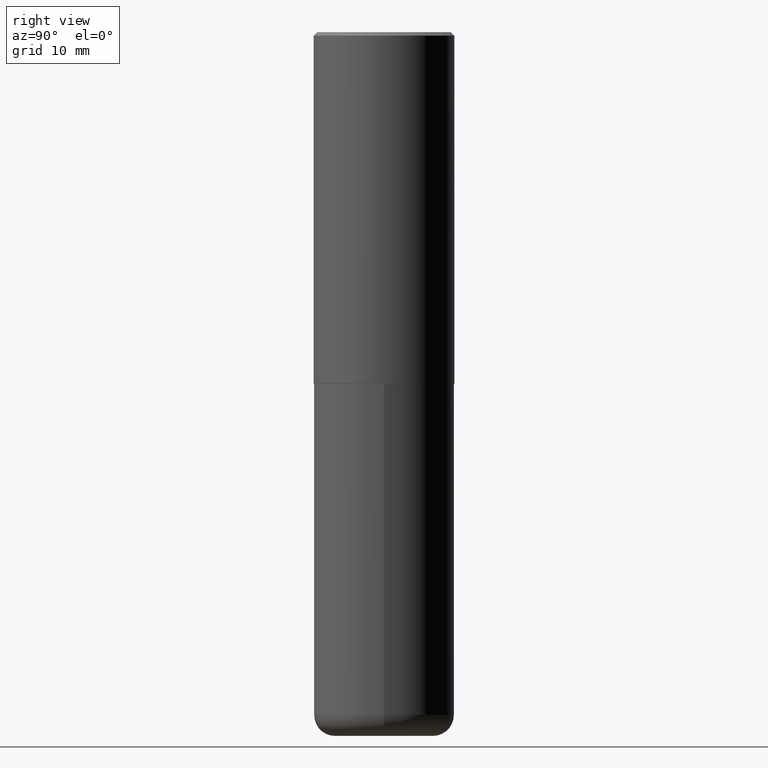
[diagram: clean part render]
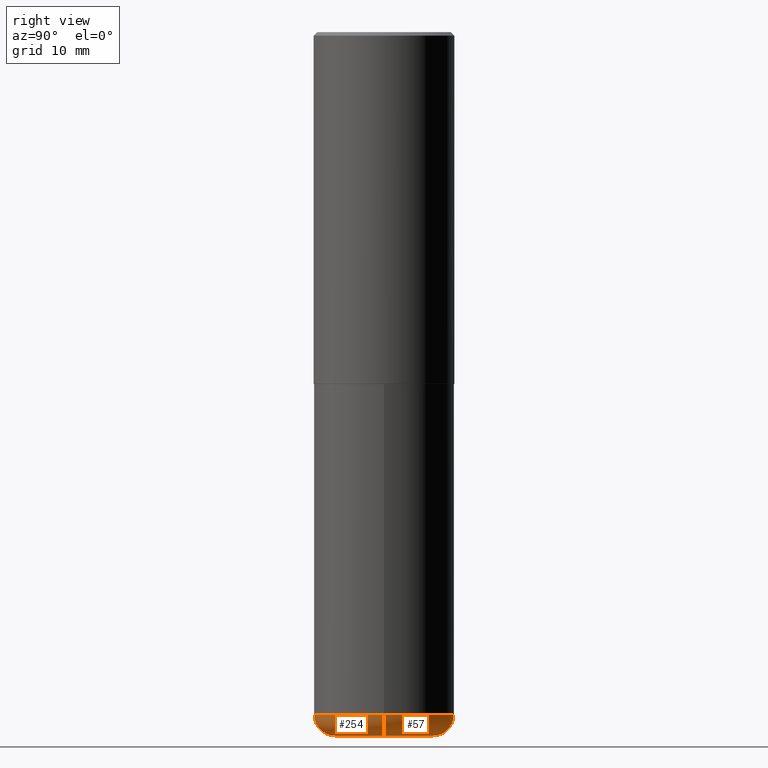
[diagram: same view with one multi-face feature highlighted, each face labeled with its STEP entity id]
A machine part, right view. The highlighted faces form ONE feature: a constant-radius fillet chain: 2 tangent blend faces with common blend radius 2.9997 mm. The faces share edges in the B-rep.
Their STEP definitions:
[1] entity #57 (Torus):
#14 = CIRCLE ( 'NONE', #38, 0.1181000000000000660 ) ;
#18 = FACE_OUTER_BOUND ( 'NONE', #238, .T. ) ;
#22 = AXIS2_PLACEMENT_3D ( 'NONE', #230, #24, #117 ) ;
#24 = DIRECTION ( 'NONE',  ( 7.105427357601001859E-15, 1.000000000000000000, -3.491481338843145583E-15 ) ) ;
#35 = VERTEX_POINT ( 'NONE', #370 ) ;
#38 = AXIS2_PLACEMENT_3D ( 'NONE', #346, #228, #362 ) ;
#39 = EDGE_CURVE ( 'NONE', #159, #35, #14, .T. ) ;
#57 = ADVANCED_FACE ( 'NONE', ( #18 ), #331, .T. ) ;
#81 = EDGE_CURVE ( 'NONE', #159, #267, #154, .T. ) ;
#91 = CARTESIAN_POINT ( 'NONE',  ( -0.3937000000000001054, -1.053621133422057529E-14, -3.818900000000000183 ) ) ;
#99 = DIRECTION ( 'NONE',  ( 1.000000000000000000, -6.982962677686266711E-15, 0.000000000000000000 ) ) ;
#104 = CARTESIAN_POINT ( 'NONE',  ( 0.2756000000000000116, -1.567046654499579837E-14, -3.937000000000000277 ) ) ;
#107 = EDGE_CURVE ( 'NONE', #35, #240, #394, .T. ) ;
#113 = AXIS2_PLACEMENT_3D ( 'NONE', #137, #210, #99 ) ;
#117 = DIRECTION ( 'NONE',  ( -1.000000000000000000, 7.105427357601000281E-15, 0.000000000000000000 ) ) ;
#121 = CARTESIAN_POINT ( 'NONE',  ( -0.2756000000000000116, -1.116195879274560421E-14, -3.937000000000000277 ) ) ;
#132 = CARTESIAN_POINT ( 'NONE',  ( 9.627810689950883669E-29, -1.374596203102546341E-14, -3.937000000000000277 ) ) ;
#137 = CARTESIAN_POINT ( 'NONE',  ( 9.339000823940418668E-29, -1.333361808490808928E-14, -3.818900000000000183 ) ) ;
#139 = ORIENTED_EDGE ( 'NONE', *, *, #107, .F. ) ;
#141 = ORIENTED_EDGE ( 'NONE', *, *, #337, .T. ) ;
#154 = CIRCLE ( 'NONE', #350, 0.2756000000000000116 ) ;
#159 = VERTEX_POINT ( 'NONE', #104 ) ;
#161 = CIRCLE ( 'NONE', #22, 0.1181000000000000660 ) ;
#210 = DIRECTION ( 'NONE',  ( -2.445468806185136597E-29, 3.491481338843145583E-15, 1.000000000000000000 ) ) ;
#228 = DIRECTION ( 'NONE',  ( -6.982962677686266711E-15, -1.000000000000000000, 3.491481338843145583E-15 ) ) ;
#230 = CARTESIAN_POINT ( 'NONE',  ( -0.2756000000000000116, -1.137536230515325427E-14, -3.818900000000000183 ) ) ;
#238 = EDGE_LOOP ( 'NONE', ( #390, #141, #139, #296 ) ) ;
#240 = VERTEX_POINT ( 'NONE', #91 ) ;
#247 = AXIS2_PLACEMENT_3D ( 'NONE', #389, #262, #326 ) ;
#262 = DIRECTION ( 'NONE',  ( -2.445468806185136597E-29, 3.491481338843145583E-15, 1.000000000000000000 ) ) ;
#267 = VERTEX_POINT ( 'NONE', #121 ) ;
#296 = ORIENTED_EDGE ( 'NONE', *, *, #39, .F. ) ;
#326 = DIRECTION ( 'NONE',  ( 1.000000000000000000, -6.982962677686266711E-15, 4.883557194083112340E-29 ) ) ;
#330 = DIRECTION ( 'NONE',  ( 1.000000000000000000, -6.982962677686265922E-15, 0.000000000000000000 ) ) ;
#331 = TOROIDAL_SURFACE ( 'NONE', #247, 0.2756000000000000116, 0.1181000000000000522 ) ;
#337 = EDGE_CURVE ( 'NONE', #267, #240, #161, .T. ) ;
#340 = DIRECTION ( 'NONE',  ( -2.445468806185136597E-29, 3.491481338843145583E-15, 1.000000000000000000 ) ) ;
#346 = CARTESIAN_POINT ( 'NONE',  ( 0.2756000000000000116, -1.525812259887842581E-14, -3.818900000000000183 ) ) ;
#350 = AXIS2_PLACEMENT_3D ( 'NONE', #132, #340, #330 ) ;
#362 = DIRECTION ( 'NONE',  ( 1.000000000000000000, -6.982962677686269077E-15, 0.000000000000000000 ) ) ;
#370 = CARTESIAN_POINT ( 'NONE',  ( 0.3937000000000001054, -1.608281049111317408E-14, -3.818900000000000183 ) ) ;
#389 = CARTESIAN_POINT ( 'NONE',  ( 9.339000823940418668E-29, -1.333361808490808928E-14, -3.818900000000000183 ) ) ;
#390 = ORIENTED_EDGE ( 'NONE', *, *, #81, .T. ) ;
#394 = CIRCLE ( 'NONE', #113, 0.3937000000000001054 ) ;
[2] entity #254 (Torus):
#12 = ORIENTED_EDGE ( 'NONE', *, *, #337, .F. ) ;
#14 = CIRCLE ( 'NONE', #38, 0.1181000000000000660 ) ;
#22 = AXIS2_PLACEMENT_3D ( 'NONE', #230, #24, #117 ) ;
#24 = DIRECTION ( 'NONE',  ( 7.105427357601001859E-15, 1.000000000000000000, -3.491481338843145583E-15 ) ) ;
#35 = VERTEX_POINT ( 'NONE', #370 ) ;
#38 = AXIS2_PLACEMENT_3D ( 'NONE', #346, #228, #362 ) ;
#39 = EDGE_CURVE ( 'NONE', #159, #35, #14, .T. ) ;
#56 = AXIS2_PLACEMENT_3D ( 'NONE', #218, #222, #355 ) ;
#66 = AXIS2_PLACEMENT_3D ( 'NONE', #391, #239, #112 ) ;
#68 = ORIENTED_EDGE ( 'NONE', *, *, #384, .F. ) ;
#74 = ORIENTED_EDGE ( 'NONE', *, *, #178, .T. ) ;
#91 = CARTESIAN_POINT ( 'NONE',  ( -0.3937000000000001054, -1.053621133422057529E-14, -3.818900000000000183 ) ) ;
#100 = ORIENTED_EDGE ( 'NONE', *, *, #39, .T. ) ;
#104 = CARTESIAN_POINT ( 'NONE',  ( 0.2756000000000000116, -1.567046654499579837E-14, -3.937000000000000277 ) ) ;
#112 = DIRECTION ( 'NONE',  ( 1.000000000000000000, -6.982962677686266711E-15, 0.000000000000000000 ) ) ;
#117 = DIRECTION ( 'NONE',  ( -1.000000000000000000, 7.105427357601000281E-15, 0.000000000000000000 ) ) ;
#121 = CARTESIAN_POINT ( 'NONE',  ( -0.2756000000000000116, -1.116195879274560421E-14, -3.937000000000000277 ) ) ;
#123 = FACE_OUTER_BOUND ( 'NONE', #234, .T. ) ;
#143 = DIRECTION ( 'NONE',  ( 1.000000000000000000, -6.982962677686265922E-15, 0.000000000000000000 ) ) ;
#153 = DIRECTION ( 'NONE',  ( -2.445468806185136597E-29, 3.491481338843145583E-15, 1.000000000000000000 ) ) ;
#159 = VERTEX_POINT ( 'NONE', #104 ) ;
#161 = CIRCLE ( 'NONE', #22, 0.1181000000000000660 ) ;
#178 = EDGE_CURVE ( 'NONE', #267, #159, #242, .T. ) ;
#201 = CIRCLE ( 'NONE', #66, 0.3937000000000001054 ) ;
#218 = CARTESIAN_POINT ( 'NONE',  ( 9.339000823940418668E-29, -1.333361808490808928E-14, -3.818900000000000183 ) ) ;
#222 = DIRECTION ( 'NONE',  ( -2.445468806185136597E-29, 3.491481338843145583E-15, 1.000000000000000000 ) ) ;
#228 = DIRECTION ( 'NONE',  ( -6.982962677686266711E-15, -1.000000000000000000, 3.491481338843145583E-15 ) ) ;
#230 = CARTESIAN_POINT ( 'NONE',  ( -0.2756000000000000116, -1.137536230515325427E-14, -3.818900000000000183 ) ) ;
#234 = EDGE_LOOP ( 'NONE', ( #12, #74, #100, #68 ) ) ;
#239 = DIRECTION ( 'NONE',  ( -2.445468806185136597E-29, 3.491481338843145583E-15, 1.000000000000000000 ) ) ;
#240 = VERTEX_POINT ( 'NONE', #91 ) ;
#242 = CIRCLE ( 'NONE', #406, 0.2756000000000000116 ) ;
#254 = ADVANCED_FACE ( 'NONE', ( #123 ), #357, .T. ) ;
#267 = VERTEX_POINT ( 'NONE', #121 ) ;
#317 = CARTESIAN_POINT ( 'NONE',  ( 9.627810689950883669E-29, -1.374596203102546341E-14, -3.937000000000000277 ) ) ;
#337 = EDGE_CURVE ( 'NONE', #267, #240, #161, .T. ) ;
#346 = CARTESIAN_POINT ( 'NONE',  ( 0.2756000000000000116, -1.525812259887842581E-14, -3.818900000000000183 ) ) ;
#355 = DIRECTION ( 'NONE',  ( 1.000000000000000000, -6.982962677686266711E-15, 4.883557194083112340E-29 ) ) ;
#357 = TOROIDAL_SURFACE ( 'NONE', #56, 0.2756000000000000116, 0.1181000000000000522 ) ;
#362 = DIRECTION ( 'NONE',  ( 1.000000000000000000, -6.982962677686269077E-15, 0.000000000000000000 ) ) ;
#370 = CARTESIAN_POINT ( 'NONE',  ( 0.3937000000000001054, -1.608281049111317408E-14, -3.818900000000000183 ) ) ;
#384 = EDGE_CURVE ( 'NONE', #240, #35, #201, .T. ) ;
#391 = CARTESIAN_POINT ( 'NONE',  ( 9.339000823940418668E-29, -1.333361808490808928E-14, -3.818900000000000183 ) ) ;
#406 = AXIS2_PLACEMENT_3D ( 'NONE', #317, #153, #143 ) ;